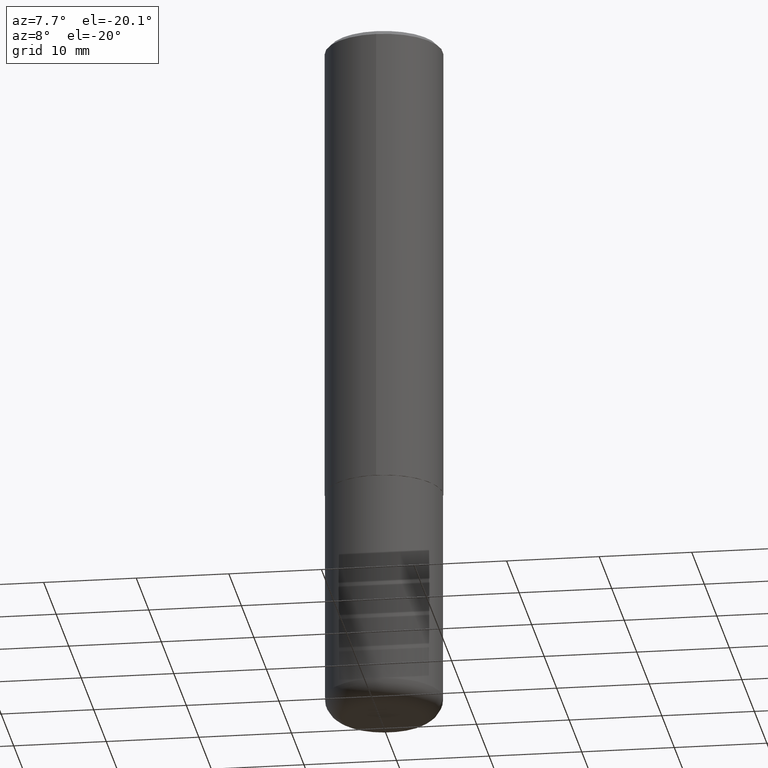
[diagram: clean part render]
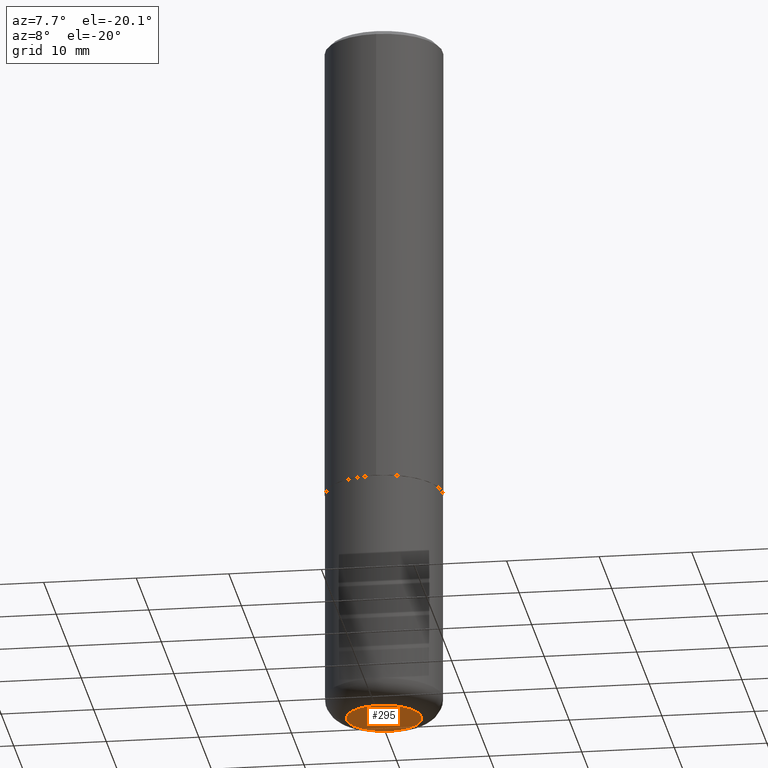
[diagram: same view with one face highlighted and labeled with its STEP entity id]
A machine part, auxiliary view. The second image highlights one B-rep face of the part: STEP entity #295.
In plain terms, the highlighted planar face has unit normal (0, -0, -1).
Its self-contained STEP definition (entity closure, byte-faithful):
#54 = EDGE_LOOP ( 'NONE', ( #106, #386 ) ) ;
#66 = AXIS2_PLACEMENT_3D ( 'NONE', #384, #93, #388 ) ;
#74 = DIRECTION ( 'NONE',  ( -2.445468806185136597E-29, 3.491481338843145583E-15, 1.000000000000000000 ) ) ;
#93 = DIRECTION ( 'NONE',  ( 2.438088387897960049E-29, -3.491481338843145188E-15, -1.000000000000000000 ) ) ;
#103 = DIRECTION ( 'NONE',  ( 1.000000000000000000, -6.982962677686259611E-15, 0.000000000000000000 ) ) ;
#106 = ORIENTED_EDGE ( 'NONE', *, *, #402, .F. ) ;
#137 = CARTESIAN_POINT ( 'NONE',  ( 7.336406418555409790E-29, -1.047444401652943635E-14, -3.000000000000000444 ) ) ;
#144 = DIRECTION ( 'NONE',  ( 1.000000000000000000, -6.982962677686259611E-15, 0.000000000000000000 ) ) ;
#173 = VERTEX_POINT ( 'NONE', #378 ) ;
#176 = CARTESIAN_POINT ( 'NONE',  ( 7.336406418555409790E-29, -1.047444401652943635E-14, -3.000000000000000444 ) ) ;
#213 = EDGE_CURVE ( 'NONE', #173, #403, #242, .T. ) ;
#241 = AXIS2_PLACEMENT_3D ( 'NONE', #176, #74, #144 ) ;
#242 = CIRCLE ( 'NONE', #323, 0.1600000000000000033 ) ;
#266 = FACE_OUTER_BOUND ( 'NONE', #54, .T. ) ;
#274 = CIRCLE ( 'NONE', #241, 0.1600000000000000033 ) ;
#275 = CARTESIAN_POINT ( 'NONE',  ( 0.1600000000000000033, -1.159171804495923808E-14, -3.000000000000000444 ) ) ;
#295 = ADVANCED_FACE ( 'NONE', ( #266 ), #355, .T. ) ;
#323 = AXIS2_PLACEMENT_3D ( 'NONE', #137, #324, #103 ) ;
#324 = DIRECTION ( 'NONE',  ( -2.445468806185136597E-29, 3.491481338843145583E-15, 1.000000000000000000 ) ) ;
#355 = PLANE ( 'NONE',  #66 ) ;
#378 = CARTESIAN_POINT ( 'NONE',  ( -0.1600000000000000033, -8.860714747973290413E-15, -3.000000000000000444 ) ) ;
#384 = CARTESIAN_POINT ( 'NONE',  ( 7.336406418555409790E-29, -1.047444401652943635E-14, -3.000000000000000444 ) ) ;
#386 = ORIENTED_EDGE ( 'NONE', *, *, #213, .F. ) ;
#388 = DIRECTION ( 'NONE',  ( -1.000000000000000000, 6.982962677686265922E-15, -4.876176775795935793E-29 ) ) ;
#402 = EDGE_CURVE ( 'NONE', #403, #173, #274, .T. ) ;
#403 = VERTEX_POINT ( 'NONE', #275 ) ;